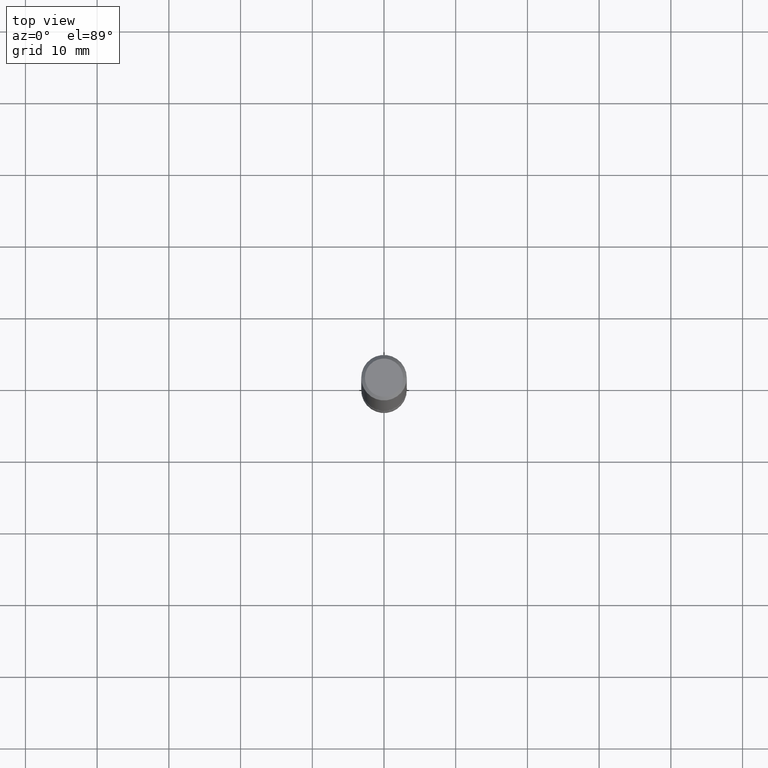
[diagram: clean part render]
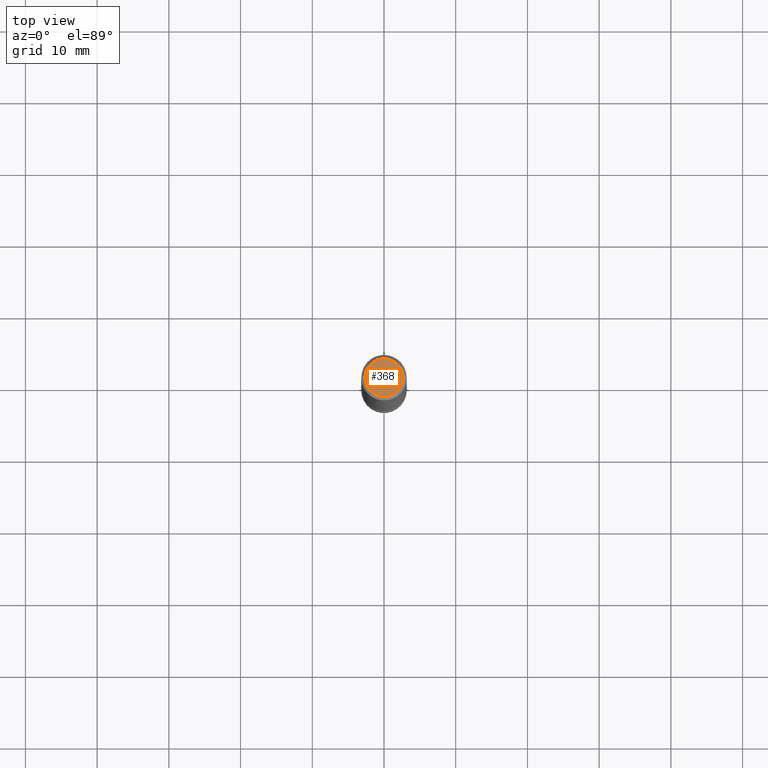
[diagram: same view with one face highlighted and labeled with its STEP entity id]
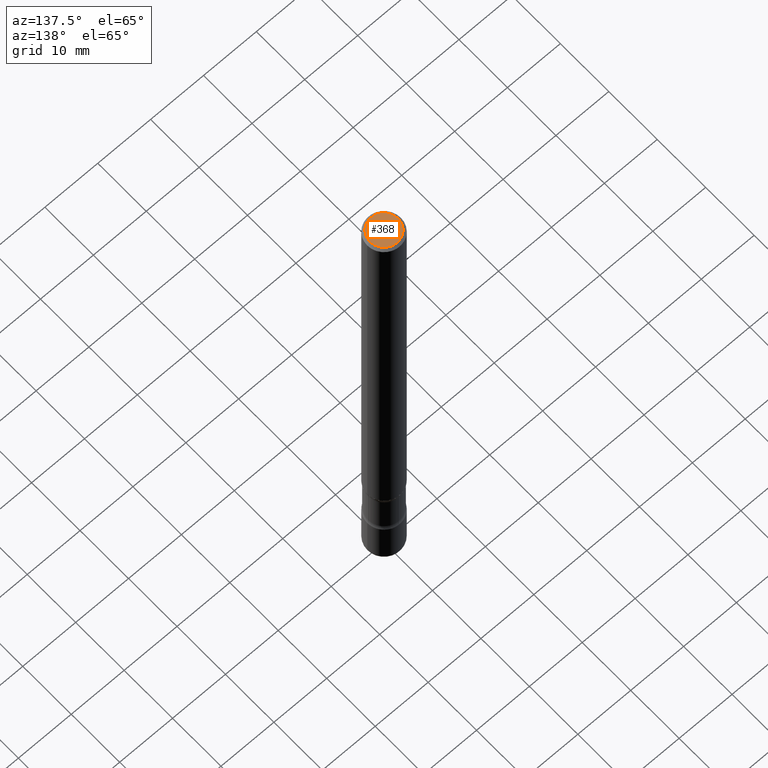
[diagram: same view with one face highlighted and labeled with its STEP entity id]
A machine part, top view. The second image highlights one B-rep face of the part: STEP entity #368.
A second angle (auxiliary view) of the same face is appended — the face is thin or edge-on in the first view.
In plain terms, the highlighted planar face has unit normal (0, -0, -1).
Its self-contained STEP definition (entity closure, byte-faithful):
#5 = VERTEX_POINT ( 'NONE', #103 ) ;
#52 = DIRECTION ( 'NONE',  ( 2.438088387897960049E-29, -3.491481338843145188E-15, -1.000000000000000000 ) ) ;
#93 = CARTESIAN_POINT ( 'NONE',  ( -1.043851414335219820E-46, 1.490343170380447200E-32, 4.268512490100411279E-18 ) ) ;
#103 = CARTESIAN_POINT ( 'NONE',  ( -0.1049999999999996630, 7.681258945454869124E-16, 4.268512490095161194E-18 ) ) ;
#143 = AXIS2_PLACEMENT_3D ( 'NONE', #667, #52, #621 ) ;
#152 = DIRECTION ( 'NONE',  ( 1.000000000000000000, -6.982962677686267499E-15, 4.876206205277409723E-29 ) ) ;
#176 = FACE_OUTER_BOUND ( 'NONE', #492, .T. ) ;
#217 = DIRECTION ( 'NONE',  ( -2.445468806185136597E-29, 3.491481338843145583E-15, 1.000000000000000000 ) ) ;
#272 = AXIS2_PLACEMENT_3D ( 'NONE', #498, #303, #794 ) ;
#276 = EDGE_CURVE ( 'NONE', #5, #784, #425, .T. ) ;
#303 = DIRECTION ( 'NONE',  ( -2.445468806185136597E-29, 3.491481338843145583E-15, 1.000000000000000000 ) ) ;
#361 = ORIENTED_EDGE ( 'NONE', *, *, #384, .T. ) ;
#368 = ADVANCED_FACE ( 'NONE', ( #176 ), #419, .F. ) ;
#384 = EDGE_CURVE ( 'NONE', #784, #5, #457, .T. ) ;
#419 = PLANE ( 'NONE',  #143 ) ;
#425 = CIRCLE ( 'NONE', #735, 0.1049999999999996630 ) ;
#457 = CIRCLE ( 'NONE', #272, 0.1049999999999996630 ) ;
#492 = EDGE_LOOP ( 'NONE', ( #599, #361 ) ) ;
#498 = CARTESIAN_POINT ( 'NONE',  ( -1.043851414335219820E-46, 1.490343170380447200E-32, 4.268512490100411279E-18 ) ) ;
#599 = ORIENTED_EDGE ( 'NONE', *, *, #276, .T. ) ;
#621 = DIRECTION ( 'NONE',  ( -1.000000000000000000, 6.982962677686265922E-15, -4.876176775795935793E-29 ) ) ;
#662 = CARTESIAN_POINT ( 'NONE',  ( 0.1049999999999996630, -8.238720831321552978E-16, 4.268512490105855498E-18 ) ) ;
#667 = CARTESIAN_POINT ( 'NONE',  ( 7.332110811570555591E-16, 0.1049999999999996630, -3.644712843334789467E-16 ) ) ;
#735 = AXIS2_PLACEMENT_3D ( 'NONE', #93, #217, #152 ) ;
#784 = VERTEX_POINT ( 'NONE', #662 ) ;
#794 = DIRECTION ( 'NONE',  ( 1.000000000000000000, -6.982962677686267499E-15, 4.876206205277409723E-29 ) ) ;